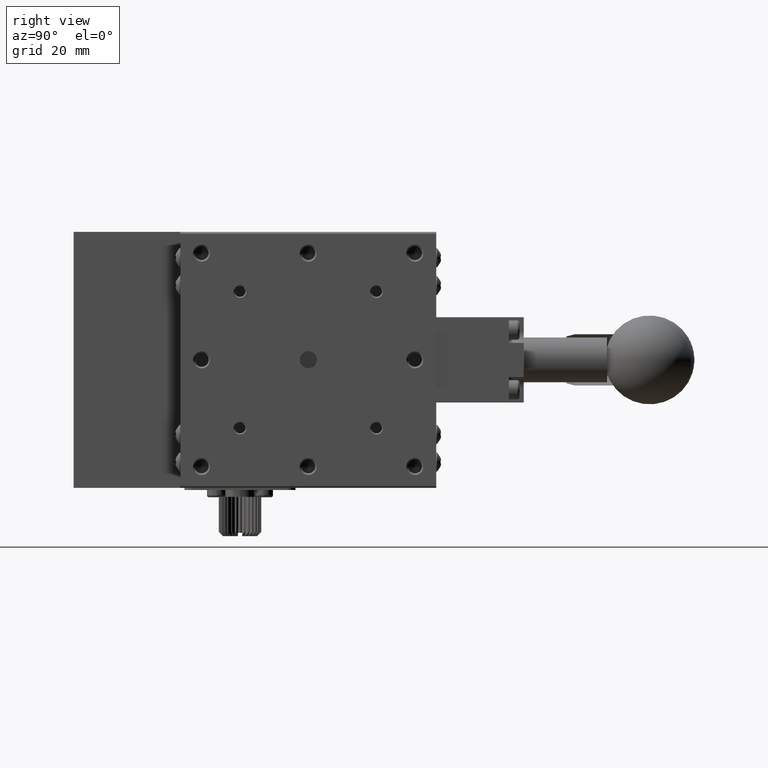
[diagram: clean part render]
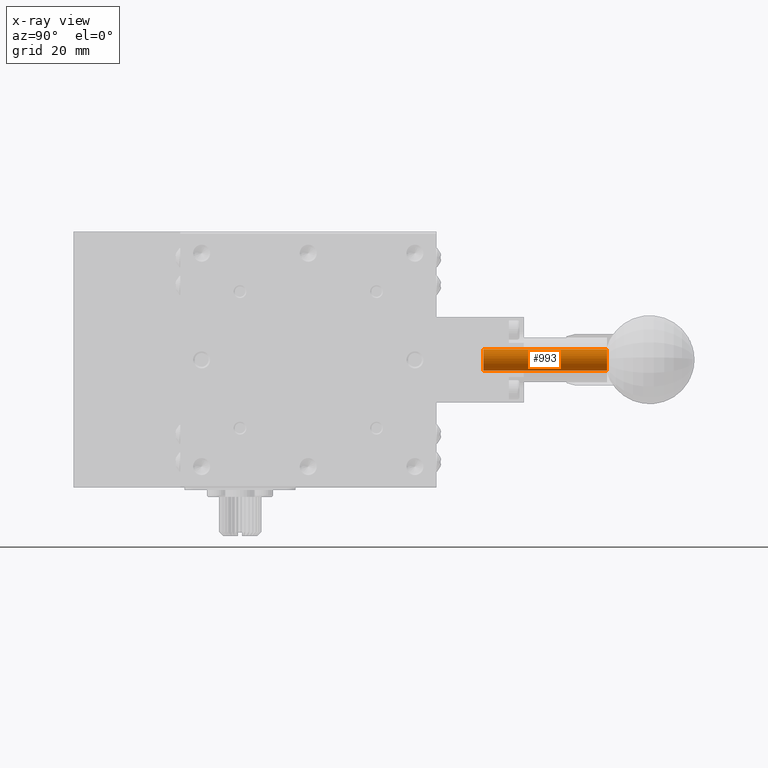
[diagram: x-ray — body ghosted, one internal face saturated and labeled with its STEP entity id]
A machine part, right view, then the same camera in x-ray: the body is ghosted and one INTERNAL B-rep face — a face not visible from any outside direction — is saturated and labeled: STEP entity #993.
In plain terms, the highlighted cylindrical surface (bore or boss wall) has radius 2.5 mm, axis along (0, -1, 0).
Its self-contained STEP definition (entity closure, byte-faithful):
#676 = EDGE_LOOP ( 'NONE', ( #44665 ) ) ;
#993 = ADVANCED_FACE ( 'NONE', ( #66504, #74585 ), #87570, .F. ) ;
#3965 = DIRECTION ( 'NONE',  ( -0.000000000000000000, 1.000000000000000000, -0.000000000000000000 ) ) ;
#14749 = DIRECTION ( 'NONE',  ( 0.000000000000000000, 0.000000000000000000, -1.000000000000000000 ) ) ;
#15221 = DIRECTION ( 'NONE',  ( 0.000000000000000000, -1.000000000000000000, 0.000000000000000000 ) ) ;
#23351 = CARTESIAN_POINT ( 'NONE',  ( 0.9999999999999991118, 105.5000000000000142, -30.00000000000000000 ) ) ;
#26004 = EDGE_CURVE ( 'NONE', #53704, #53704, #31515, .T. ) ;
#31515 = CIRCLE ( 'NONE', #85064, 2.500000000000002220 ) ;
#33360 = AXIS2_PLACEMENT_3D ( 'NONE', #49852, #3965, #65230 ) ;
#44665 = ORIENTED_EDGE ( 'NONE', *, *, #26004, .F. ) ;
#49852 = CARTESIAN_POINT ( 'NONE',  ( 0.9999999999999991118, 96.00000000000000000, -30.00000000000000000 ) ) ;
#53704 = VERTEX_POINT ( 'NONE', #61399 ) ;
#53937 = DIRECTION ( 'NONE',  ( 0.000000000000000000, -1.000000000000000000, 0.000000000000000000 ) ) ;
#60343 = VERTEX_POINT ( 'NONE', #61283 ) ;
#61283 = CARTESIAN_POINT ( 'NONE',  ( 0.9999999999999991118, 96.00000000000000000, -32.50000000000000000 ) ) ;
#61399 = CARTESIAN_POINT ( 'NONE',  ( 0.9999999999999991118, 125.0000000000000000, -32.50000000000000000 ) ) ;
#65230 = DIRECTION ( 'NONE',  ( 0.000000000000000000, 0.000000000000000000, -1.000000000000000000 ) ) ;
#66504 = FACE_OUTER_BOUND ( 'NONE', #73311, .T. ) ;
#67405 = DIRECTION ( 'NONE',  ( 0.000000000000000000, 0.000000000000000000, -1.000000000000000000 ) ) ;
#69058 = ORIENTED_EDGE ( 'NONE', *, *, #83136, .F. ) ;
#73311 = EDGE_LOOP ( 'NONE', ( #69058 ) ) ;
#74585 = FACE_OUTER_BOUND ( 'NONE', #676, .T. ) ;
#74644 = CIRCLE ( 'NONE', #33360, 2.500000000000002220 ) ;
#81770 = CARTESIAN_POINT ( 'NONE',  ( 0.9999999999999991118, 125.0000000000000000, -30.00000000000000000 ) ) ;
#83136 = EDGE_CURVE ( 'NONE', #60343, #60343, #74644, .T. ) ;
#85064 = AXIS2_PLACEMENT_3D ( 'NONE', #81770, #53937, #67405 ) ;
#85650 = AXIS2_PLACEMENT_3D ( 'NONE', #23351, #15221, #14749 ) ;
#87570 = CYLINDRICAL_SURFACE ( 'NONE', #85650, 2.500000000000002220 ) ;